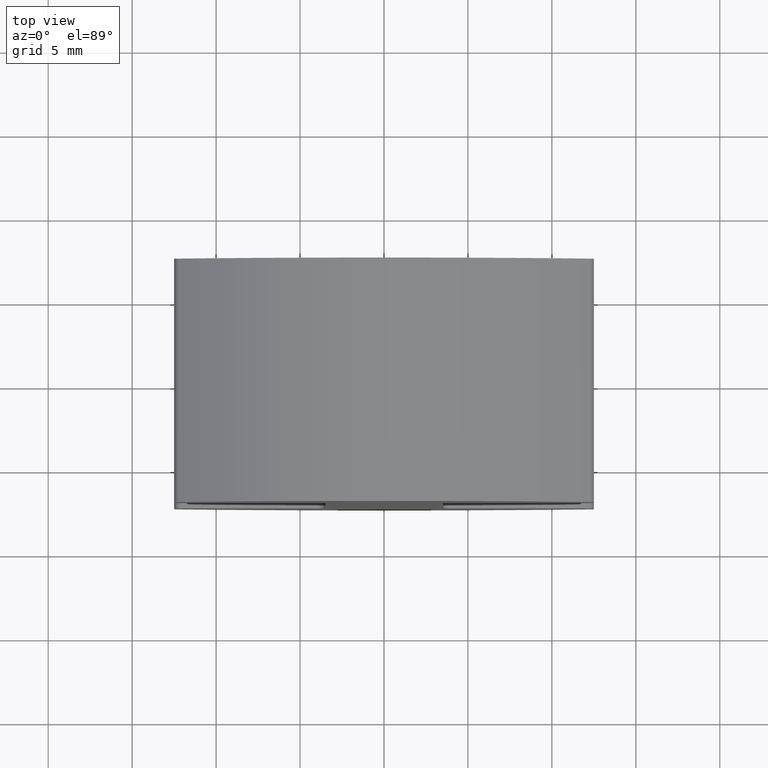
[diagram: clean part render]
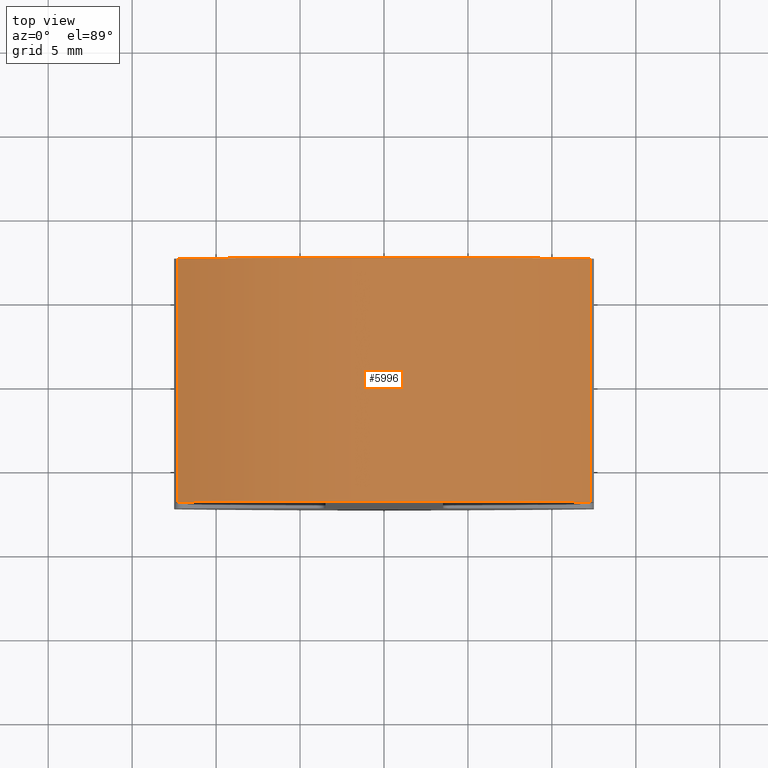
[diagram: same view with one face highlighted and labeled with its STEP entity id]
A machine part, top view. The second image highlights one B-rep face of the part: STEP entity #5996.
In plain terms, the highlighted cylindrical surface (partial cylindrical patch) has radius 22 mm, axis along (-0, -1, -0).
Its self-contained STEP definition (entity closure, byte-faithful):
#863 = VERTEX_POINT ( 'NONE', #5034 ) ;
#1085 = VERTEX_POINT ( 'NONE', #6494 ) ;
#1415 = VECTOR ( 'NONE', #9786, 1000.000000000000000 ) ;
#1981 = VERTEX_POINT ( 'NONE', #3911 ) ;
#2000 = VERTEX_POINT ( 'NONE', #11523 ) ;
#2407 = AXIS2_PLACEMENT_3D ( 'NONE', #6994, #9665, #5067 ) ;
#2432 = LINE ( 'NONE', #10287, #8089 ) ;
#2913 = CYLINDRICAL_SURFACE ( 'NONE', #11599, 21.99999999999999300 ) ;
#3181 = ORIENTED_EDGE ( 'NONE', *, *, #4450, .T. ) ;
#3374 = EDGE_CURVE ( 'NONE', #1981, #863, #8732, .T. ) ;
#3818 = CARTESIAN_POINT ( 'NONE',  ( -1.274473524158177900E-054, 7.250000000000000000, -5.703866990231667900 ) ) ;
#3911 = CARTESIAN_POINT ( 'NONE',  ( -12.27906976744186100, 7.250000000000000000, 12.55056933758451100 ) ) ;
#3937 = DIRECTION ( 'NONE',  ( 0.0000000000000000000, 0.0000000000000000000, 1.000000000000000000 ) ) ;
#4147 = CARTESIAN_POINT ( 'NONE',  ( 12.27906976744186100, 7.250000000000000000, 12.55056933758451100 ) ) ;
#4209 = DIRECTION ( 'NONE',  ( 0.0000000000000000000, 0.0000000000000000000, -1.000000000000000000 ) ) ;
#4450 = EDGE_CURVE ( 'NONE', #1085, #863, #4872, .T. ) ;
#4872 = LINE ( 'NONE', #4147, #1415 ) ;
#5034 = CARTESIAN_POINT ( 'NONE',  ( 12.27906976744186100, 7.250000000000000000, 12.55056933758451100 ) ) ;
#5067 = DIRECTION ( 'NONE',  ( 0.0000000000000000000, 0.0000000000000000000, 1.000000000000000000 ) ) ;
#5996 = ADVANCED_FACE ( 'NONE', ( #6657 ), #2913, .T. ) ;
#6122 = ORIENTED_EDGE ( 'NONE', *, *, #3374, .F. ) ;
#6382 = EDGE_LOOP ( 'NONE', ( #6122, #8647, #9533, #3181 ) ) ;
#6494 = CARTESIAN_POINT ( 'NONE',  ( 12.27906976744186100, -7.250000000000000000, 12.55056933758451100 ) ) ;
#6657 = FACE_OUTER_BOUND ( 'NONE', #6382, .T. ) ;
#6994 = CARTESIAN_POINT ( 'NONE',  ( -1.274473524158177900E-054, 7.250000000000000000, -5.703866990231667900 ) ) ;
#7402 = EDGE_CURVE ( 'NONE', #1981, #2000, #2432, .T. ) ;
#8089 = VECTOR ( 'NONE', #10330, 1000.000000000000000 ) ;
#8647 = ORIENTED_EDGE ( 'NONE', *, *, #7402, .T. ) ;
#8732 = CIRCLE ( 'NONE', #2407, 22.00000000000000000 ) ;
#9366 = DIRECTION ( 'NONE',  ( -0.0000000000000000000, -1.000000000000000000, -0.0000000000000000000 ) ) ;
#9533 = ORIENTED_EDGE ( 'NONE', *, *, #11775, .T. ) ;
#9614 = AXIS2_PLACEMENT_3D ( 'NONE', #10542, #9656, #3937 ) ;
#9656 = DIRECTION ( 'NONE',  ( 0.0000000000000000000, 1.000000000000000000, 0.0000000000000000000 ) ) ;
#9665 = DIRECTION ( 'NONE',  ( 0.0000000000000000000, 1.000000000000000000, 0.0000000000000000000 ) ) ;
#9786 = DIRECTION ( 'NONE',  ( 0.0000000000000000000, 1.000000000000000000, 0.0000000000000000000 ) ) ;
#10287 = CARTESIAN_POINT ( 'NONE',  ( -12.27906976744186100, 7.250000000000000000, 12.55056933758451100 ) ) ;
#10330 = DIRECTION ( 'NONE',  ( -0.0000000000000000000, -1.000000000000000000, -0.0000000000000000000 ) ) ;
#10542 = CARTESIAN_POINT ( 'NONE',  ( -1.274473524158177900E-054, -7.250000000000000000, -5.703866990231667900 ) ) ;
#10722 = CIRCLE ( 'NONE', #9614, 22.00000000000000000 ) ;
#11523 = CARTESIAN_POINT ( 'NONE',  ( -12.27906976744186100, -7.250000000000000000, 12.55056933758451100 ) ) ;
#11599 = AXIS2_PLACEMENT_3D ( 'NONE', #3818, #9366, #4209 ) ;
#11775 = EDGE_CURVE ( 'NONE', #2000, #1085, #10722, .T. ) ;